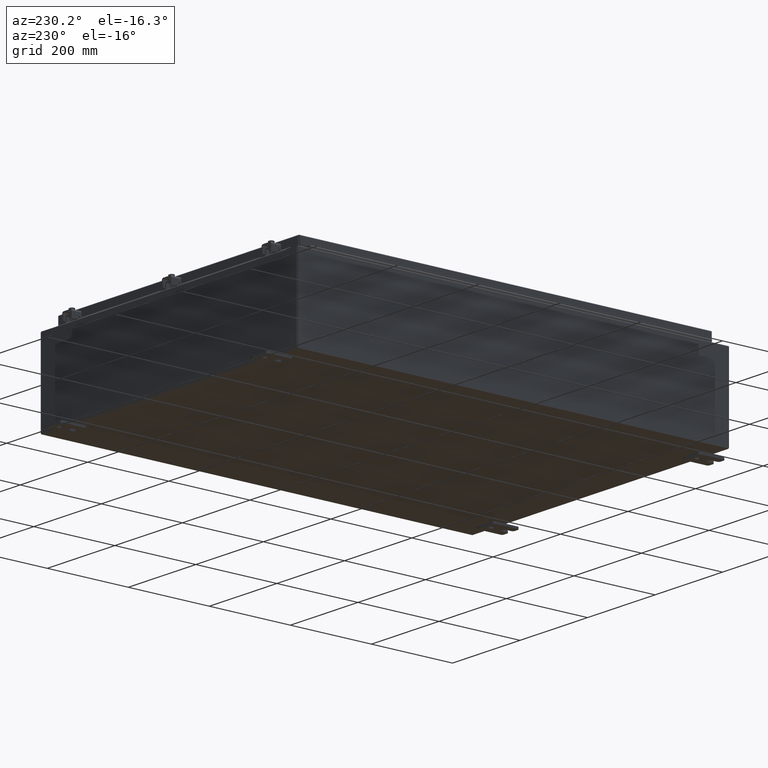
[diagram: clean part render]
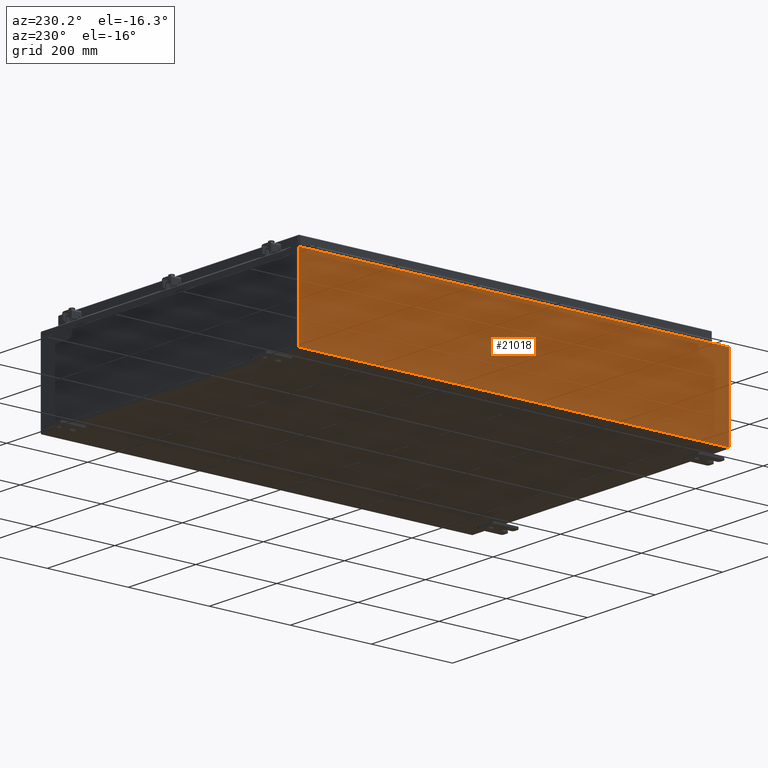
[diagram: same view with one face highlighted and labeled with its STEP entity id]
A machine part, auxiliary view. The second image highlights one B-rep face of the part: STEP entity #21018.
In plain terms, the highlighted planar face has unit normal (1, 0, 0).
Its self-contained STEP definition (entity closure, byte-faithful):
#1425 = VECTOR ( 'NONE', #22573, 39.37007874015748100 ) ;
#3623 = CARTESIAN_POINT ( 'NONE',  ( -14.99999999999999800, 20.92530000000000700, 0.01299999999999984700 ) ) ;
#3720 = CARTESIAN_POINT ( 'NONE',  ( -14.99999999999999800, 0.0000000000000000000, -5.403395625144962100E-014 ) ) ;
#4290 = CARTESIAN_POINT ( 'NONE',  ( -15.00000000000002700, -20.92529999999998900, 7.837599999999999200 ) ) ;
#4686 = FACE_OUTER_BOUND ( 'NONE', #37778, .T. ) ;
#5819 = CARTESIAN_POINT ( 'NONE',  ( -14.99999999999999800, 20.92530000000000700, 0.01299999999999983600 ) ) ;
#7279 = DIRECTION ( 'NONE',  ( -0.0000000000000000000, 1.000000000000000000, -0.0000000000000000000 ) ) ;
#9128 = DIRECTION ( 'NONE',  ( 0.0000000000000000000, 1.000000000000000000, 0.0000000000000000000 ) ) ;
#9630 = ORIENTED_EDGE ( 'NONE', *, *, #21123, .T. ) ;
#9678 = VERTEX_POINT ( 'NONE', #20867 ) ;
#11839 = CARTESIAN_POINT ( 'NONE',  ( -14.99999999999999800, 20.92530000000000700, -5.403395625144962100E-014 ) ) ;
#14688 = VECTOR ( 'NONE', #7279, 39.37007874015748100 ) ;
#16769 = AXIS2_PLACEMENT_3D ( 'NONE', #3720, #23372, #20659 ) ;
#18592 = VECTOR ( 'NONE', #9128, 39.37007874015748100 ) ;
#18784 = LINE ( 'NONE', #11839, #47540 ) ;
#20659 = DIRECTION ( 'NONE',  ( 3.584876173029202900E-015, 0.0000000000000000000, -1.000000000000000000 ) ) ;
#20867 = CARTESIAN_POINT ( 'NONE',  ( -15.00000000000002700, 20.92530000000000700, 7.837599999999999200 ) ) ;
#21018 = ADVANCED_FACE ( 'NONE', ( #4686 ), #42666, .F. ) ;
#21123 = EDGE_CURVE ( 'NONE', #37579, #9678, #47360, .T. ) ;
#22573 = DIRECTION ( 'NONE',  ( -3.584876173029202900E-015, 0.0000000000000000000, 1.000000000000000000 ) ) ;
#23140 = EDGE_CURVE ( 'NONE', #24099, #37579, #29986, .T. ) ;
#23372 = DIRECTION ( 'NONE',  ( 1.000000000000000000, 0.0000000000000000000, 3.584876173029202900E-015 ) ) ;
#24099 = VERTEX_POINT ( 'NONE', #24567 ) ;
#24567 = CARTESIAN_POINT ( 'NONE',  ( -14.99999999999999800, -20.92529999999998600, 0.01299999999999984700 ) ) ;
#24751 = LINE ( 'NONE', #3623, #14688 ) ;
#25104 = CARTESIAN_POINT ( 'NONE',  ( -15.00000000000002700, -20.92529999999998600, 7.837599999999999200 ) ) ;
#26776 = ORIENTED_EDGE ( 'NONE', *, *, #38706, .T. ) ;
#29986 = LINE ( 'NONE', #47886, #1425 ) ;
#33245 = VERTEX_POINT ( 'NONE', #5819 ) ;
#37579 = VERTEX_POINT ( 'NONE', #25104 ) ;
#37778 = EDGE_LOOP ( 'NONE', ( #9630, #26776, #45118, #44220 ) ) ;
#38561 = EDGE_CURVE ( 'NONE', #24099, #33245, #24751, .T. ) ;
#38706 = EDGE_CURVE ( 'NONE', #9678, #33245, #18784, .T. ) ;
#41904 = DIRECTION ( 'NONE',  ( 3.584876173029202900E-015, 0.0000000000000000000, -1.000000000000000000 ) ) ;
#42666 = PLANE ( 'NONE',  #16769 ) ;
#44220 = ORIENTED_EDGE ( 'NONE', *, *, #23140, .T. ) ;
#45118 = ORIENTED_EDGE ( 'NONE', *, *, #38561, .F. ) ;
#47360 = LINE ( 'NONE', #4290, #18592 ) ;
#47540 = VECTOR ( 'NONE', #41904, 39.37007874015748100 ) ;
#47886 = CARTESIAN_POINT ( 'NONE',  ( -14.99999999999999800, -20.92529999999999300, -5.403395625144962100E-014 ) ) ;